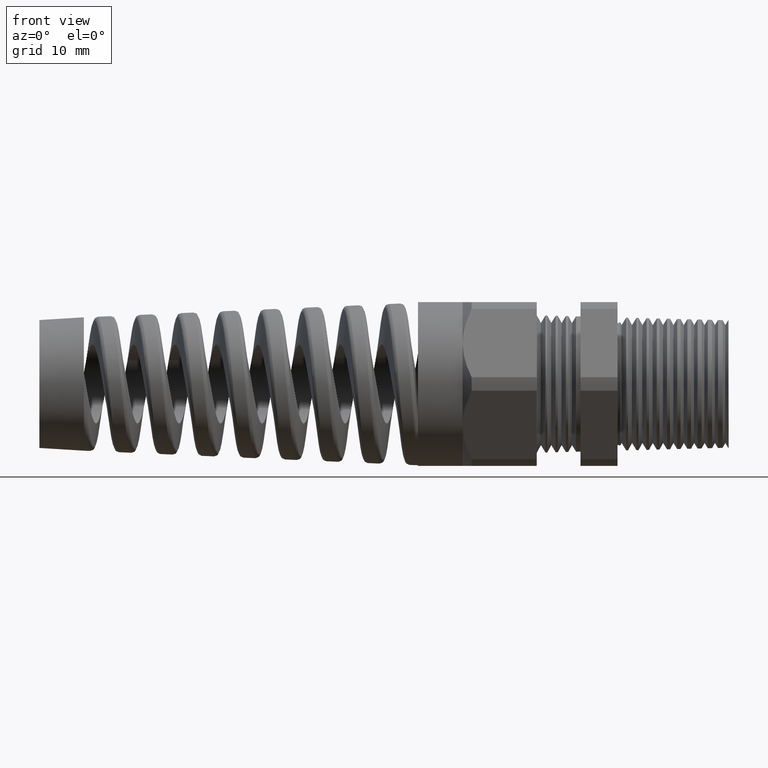
[diagram: clean part render]
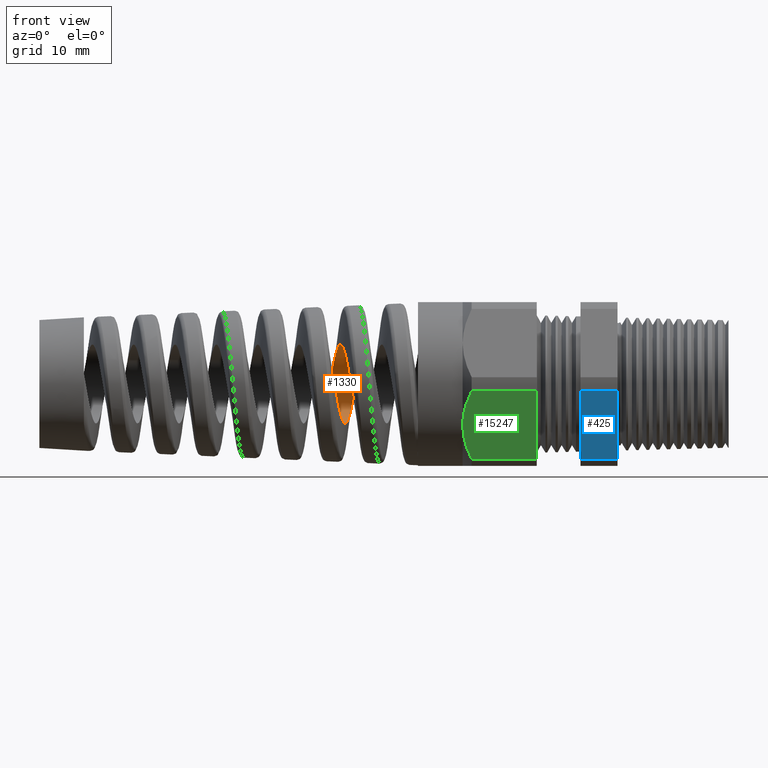
[diagram: same view with three faces highlighted in distinct colors, each labeled with its STEP entity id]
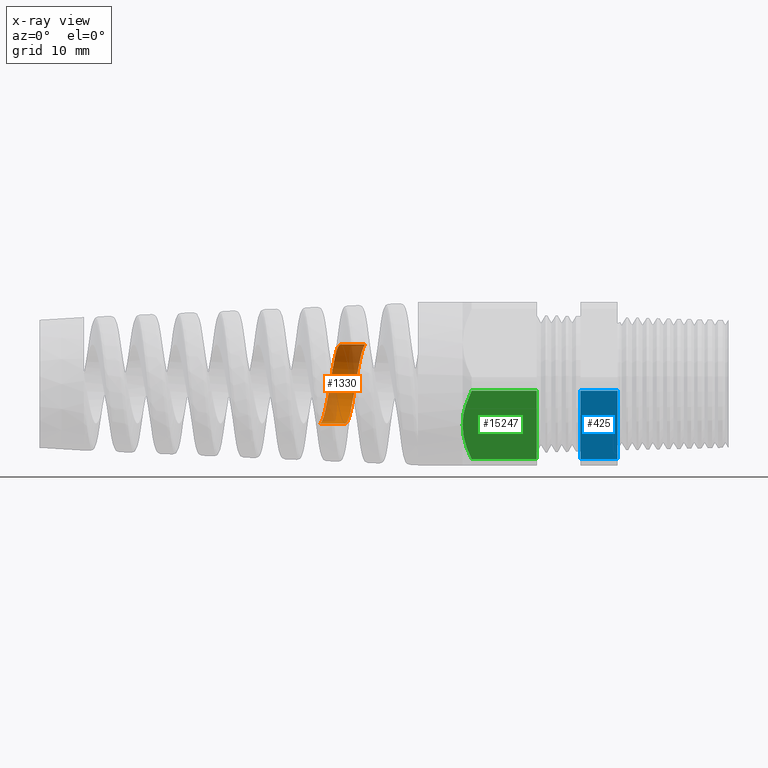
[diagram: x-ray of the same camera — body ghosted, the three highlighted faces saturated]
A machine part, front view with three faces highlighted in distinct colors.
The next image is the same camera in x-ray (body ghosted, the three faces saturated) — at least one of them is partly hidden behind the body in this view.
Their STEP definitions:

[orange] entity #1330 — the highlighted cylindrical surface (partial cylindrical patch) has radius 5.323 mm, axis along (1, 0, 0).
#1254 = VERTEX_POINT ( 'NONE', #12296 ) ;
#1256 = EDGE_CURVE ( 'NONE', #1276, #1254, #12176, .T. ) ;
#1262 = VERTEX_POINT ( 'NONE', #12270 ) ;
#1264 = VERTEX_POINT ( 'NONE', #12153 ) ;
#1276 = VERTEX_POINT ( 'NONE', #12507 ) ;
#1324 = EDGE_CURVE ( 'NONE', #1254, #1264, #12699, .T. ) ;
#1330 = ADVANCED_FACE ( 'NONE', ( #12790 ), #12969, .F. ) ;
#1331 = EDGE_LOOP ( 'NONE', ( #1332, #1333, #1335, #1336 ) ) ;
#1332 = ORIENTED_EDGE ( 'NONE', *, *, #1351, .F. ) ;
#1333 = ORIENTED_EDGE ( 'NONE', *, *, #1334, .T. ) ;
#1334 = EDGE_CURVE ( 'NONE', #1262, #1276, #12930, .T. ) ;
#1335 = ORIENTED_EDGE ( 'NONE', *, *, #1256, .T. ) ;
#1336 = ORIENTED_EDGE ( 'NONE', *, *, #1324, .T. ) ;
#1351 = EDGE_CURVE ( 'NONE', #1262, #1264, #12964, .T. ) ;
#12134 = CARTESIAN_POINT ( 'NONE',  ( -1.746575497261666700, 0.05444906251263706400, -0.2028371039648023400 ) ) ;
#12136 = CARTESIAN_POINT ( 'NONE',  ( -1.744300525730997100, 0.06751402036349636600, -0.1988687656055185500 ) ) ;
#12153 = CARTESIAN_POINT ( 'NONE',  ( -1.645530262480459300, -4.159676092884075900E-013, 0.2095688967857589100 ) ) ;
#12173 = DIRECTION ( 'NONE',  ( 1.000000000000000000, 0.0000000000000000000, 0.0000000000000000000 ) ) ;
#12174 = VECTOR ( 'NONE', #12173, 39.37007874015748100 ) ;
#12175 = CARTESIAN_POINT ( 'NONE',  ( 0.0000000000000000000, 0.0000000000000000000, -0.2095688967857589100 ) ) ;
#12176 = LINE ( 'NONE', #12175, #12174 ) ;
#12270 = CARTESIAN_POINT ( 'NONE',  ( -1.781526348335526600, -9.763203213747678800E-013, 0.2095688967857588500 ) ) ;
#12296 = CARTESIAN_POINT ( 'NONE',  ( -1.755782224503438200, -9.469694959287762100E-015, -0.2095688967857589100 ) ) ;
#12507 = CARTESIAN_POINT ( 'NONE',  ( -1.891273461046598700, 1.193643631347311500E-012, -0.2095688967857588500 ) ) ;
#12693 = CARTESIAN_POINT ( 'NONE',  ( -1.750022955404393800, 0.03425413527390328700, -0.2068644335790240900 ) ) ;
#12694 = CARTESIAN_POINT ( 'NONE',  ( -1.751184398491646900, 0.02738387321828985800, -0.2078862482763322300 ) ) ;
#12695 = CARTESIAN_POINT ( 'NONE',  ( -1.753491568717884300, 0.01367388344779317400, -0.2092357370199947100 ) ) ;
#12696 = CARTESIAN_POINT ( 'NONE',  ( -1.754638006638560100, 0.006830754863076883900, -0.2095688967857592100 ) ) ;
#12697 = CARTESIAN_POINT ( 'NONE',  ( -1.755782224503438200, -9.469694959287762100E-015, -0.2095688967857589100 ) ) ;
#12699 = B_SPLINE_CURVE_WITH_KNOTS ( 'NONE', 3,
 ( #12697, #12696, #12695, #12694, #12693, #12134, #12136, #12820, #12721, #12833, #12834, #12749, #12835, #12855, #12854, #12726, #12725, #12920, #12919, #12724, #12723, #12722, #12731, #12730, #12729, #12728, #12727, #12756, #12755, #12754, #12753, #12752, #12751, #12750, #12832, #12831, #12830, #12829 ),
 .UNSPECIFIED., .F., .F.,
 ( 4, 2, 2, 2, 2, 2, 2, 2, 2, 2, 2, 2, 2, 2, 2, 2, 2, 2, 4 ),
 ( 0.2124503794155099800, 0.2129777579731760900, 0.2135051365308421900, 0.2145598936461743900, 0.2156146507615066300, 0.2166694078768388300, 0.2171967864345049300, 0.2177241649921710400, 0.2187789221075032400, 0.2198336792228354500, 0.2208884363381676500, 0.2219431934534998600, 0.2229979505688320700, 0.2240527076841642700, 0.2251074647994964800, 0.2261622219148286800, 0.2272169790301608900, 0.2282717361454930900, 0.2293264932608253000 ),
 .UNSPECIFIED. ) ;
#12721 = CARTESIAN_POINT ( 'NONE',  ( -1.737383098091930000, 0.1051410334991804000, -0.1818005547064514300 ) ) ;
#12722 = CARTESIAN_POINT ( 'NONE',  ( -1.698339673693155700, 0.2095612349495736500, 0.01383629672076523700 ) ) ;
#12723 = CARTESIAN_POINT ( 'NONE',  ( -1.702934691205070500, 0.2095764938154713600, -0.01360321802181865800 ) ) ;
#12724 = CARTESIAN_POINT ( 'NONE',  ( -1.705256704005324100, 0.2082090057921019400, -0.02747480528906551900 ) ) ;
#12725 = CARTESIAN_POINT ( 'NONE',  ( -1.716736988460722000, 0.1883683682871228300, -0.09288211031904705700 ) ) ;
#12726 = CARTESIAN_POINT ( 'NONE',  ( -1.719033334957258000, 0.1818606483124988700, -0.1050343287266973500 ) ) ;
#12727 = CARTESIAN_POINT ( 'NONE',  ( -1.682290523494904800, 0.1819054238112201800, 0.1049752707684529800 ) ) ;
#12728 = CARTESIAN_POINT ( 'NONE',  ( -1.684569553552742300, 0.1883410568359895600, 0.09291719281961885500 ) ) ;
#12729 = CARTESIAN_POINT ( 'NONE',  ( -1.689147123227995300, 0.1988148089669389300, 0.06766557579017003200 ) ) ;
#12730 = CARTESIAN_POINT ( 'NONE',  ( -1.691470528289588800, 0.2028703848994551600, 0.05432075301512849500 ) ) ;
#12731 = CARTESIAN_POINT ( 'NONE',  ( -1.696062779094625200, 0.2082188267419427300, 0.02742366619532337500 ) ) ;
#12749 = CARTESIAN_POINT ( 'NONE',  ( -1.727065922519408700, 0.1530581960897300600, -0.1433171186990354600 ) ) ;
#12750 = CARTESIAN_POINT ( 'NONE',  ( -1.657020765778545200, 0.06755493690899523600, 0.1988524366372546000 ) ) ;
#12751 = CARTESIAN_POINT ( 'NONE',  ( -1.661597748390768900, 0.09281255216897796300, 0.1883926517070993500 ) ) ;
#12752 = CARTESIAN_POINT ( 'NONE',  ( -1.663874474454407200, 0.1048744893160691700, 0.1819635319612454300 ) ) ;
#12753 = CARTESIAN_POINT ( 'NONE',  ( -1.668495391114378300, 0.1278196919222992500, 0.1666478677631548500 ) ) ;
#12754 = CARTESIAN_POINT ( 'NONE',  ( -1.670798026682186500, 0.1384903099025273100, 0.1578794877336493500 ) ) ;
#12755 = CARTESIAN_POINT ( 'NONE',  ( -1.675369619909822900, 0.1578024668742723000, 0.1385780647589358000 ) ) ;
#12756 = CARTESIAN_POINT ( 'NONE',  ( -1.677670087057628400, 0.1665768218702127500, 0.1279122867455236600 ) ) ;
#12790 = FACE_OUTER_BOUND ( 'NONE', #1331, .T. ) ;
#12818 = CARTESIAN_POINT ( 'NONE',  ( -1.891273461046598700, 1.193643631347311500E-012, -0.2095688967857588500 ) ) ;
#12819 = CARTESIAN_POINT ( 'NONE',  ( -1.888993878671845200, 0.01367702947572828300, -0.2095688967856810000 ) ) ;
#12820 = CARTESIAN_POINT ( 'NONE',  ( -1.739709601462629900, 0.09283740325459019500, -0.1883829754411206200 ) ) ;
#12829 = CARTESIAN_POINT ( 'NONE',  ( -1.645530262480459300, -4.159676092884075900E-013, 0.2095688967857589100 ) ) ;
#12830 = CARTESIAN_POINT ( 'NONE',  ( -1.647827202617461400, 0.01371995186813719700, 0.2095688967857860500 ) ) ;
#12831 = CARTESIAN_POINT ( 'NONE',  ( -1.650101894014687000, 0.02730842958841207800, 0.2082339571602138700 ) ) ;
#12832 = CARTESIAN_POINT ( 'NONE',  ( -1.654695646200556900, 0.05420804593740716200, 0.2029005150235824200 ) ) ;
#12833 = CARTESIAN_POINT ( 'NONE',  ( -1.732804833207297400, 0.1278720607108399800, -0.1665977632095115600 ) ) ;
#12834 = CARTESIAN_POINT ( 'NONE',  ( -1.730528378862969700, 0.1384400431651635300, -0.1579348554251728800 ) ) ;
#12835 = CARTESIAN_POINT ( 'NONE',  ( -1.725904271645808800, 0.1577181453561663800, -0.1381708908349837700 ) ) ;
#12854 = CARTESIAN_POINT ( 'NONE',  ( -1.722461951135749500, 0.1704876651940945300, -0.1220642220128156500 ) ) ;
#12855 = CARTESIAN_POINT ( 'NONE',  ( -1.723605382106830200, 0.1664189027377970300, -0.1275576624913983500 ) ) ;
#12887 = CARTESIAN_POINT ( 'NONE',  ( -1.886679357723837200, 0.02756741422999585400, -0.2081988884560221900 ) ) ;
#12888 = CARTESIAN_POINT ( 'NONE',  ( -1.882112434805772900, 0.05443270335471433300, -0.2028393953036467000 ) ) ;
#12889 = CARTESIAN_POINT ( 'NONE',  ( -1.879846041058534900, 0.06749918686196575100, -0.1988759976966291100 ) ) ;
#12890 = CARTESIAN_POINT ( 'NONE',  ( -1.876411654168027400, 0.08653527784974912600, -0.1909919847380534600 ) ) ;
#12891 = CARTESIAN_POINT ( 'NONE',  ( -1.875254840501709500, 0.09281746723439066000, -0.1880197159530952200 ) ) ;
#12892 = CARTESIAN_POINT ( 'NONE',  ( -1.872960805646126400, 0.1049543249723794600, -0.1815243385347594100 ) ) ;
#12893 = CARTESIAN_POINT ( 'NONE',  ( -1.871820977463255900, 0.1108250161746883900, -0.1779988109187669000 ) ) ;
#12894 = CARTESIAN_POINT ( 'NONE',  ( -1.868405974433819500, 0.1278552371817553200, -0.1666094667768200900 ) ) ;
#12895 = CARTESIAN_POINT ( 'NONE',  ( -1.866135156976218100, 0.1384383996269417900, -0.1579405745581450900 ) ) ;
#12896 = CARTESIAN_POINT ( 'NONE',  ( -1.861524015658970500, 0.1579944055237458600, -0.1383769612552031800 ) ) ;
#12897 = CARTESIAN_POINT ( 'NONE',  ( -1.859247799063939800, 0.1666876095605509800, -0.1277528173073200200 ) ) ;
#12898 = CARTESIAN_POINT ( 'NONE',  ( -1.855834314445699200, 0.1780627984865138000, -0.1107220260286689900 ) ) ;
#12899 = CARTESIAN_POINT ( 'NONE',  ( -1.854695218617993000, 0.1815809658113198300, -0.1048555068580484400 ) ) ;
#12900 = CARTESIAN_POINT ( 'NONE',  ( -1.852403999263667800, 0.1880587240849655500, -0.09273748303121423500 ) ) ;
#12901 = CARTESIAN_POINT ( 'NONE',  ( -1.851246290987832000, 0.1910296186176624100, -0.08645312172339418600 ) ) ;
#12902 = CARTESIAN_POINT ( 'NONE',  ( -1.847805361816713800, 0.1989180908016855400, -0.06737993344854693900 ) ) ;
#12903 = CARTESIAN_POINT ( 'NONE',  ( -1.845540376741785900, 0.2028723747767411400, -0.05430590772215490600 ) ) ;
#12904 = CARTESIAN_POINT ( 'NONE',  ( -1.840979719677842400, 0.2082112013591863300, -0.02746684710056964900 ) ) ;
#12905 = CARTESIAN_POINT ( 'NONE',  ( -1.838662594602048500, 0.2095765015910175100, -0.01357374124329432200 ) ) ;
#12906 = CARTESIAN_POINT ( 'NONE',  ( -1.834097483491273300, 0.2095612267619286800, 0.01380755983167150800 ) ) ;
#12907 = CARTESIAN_POINT ( 'NONE',  ( -1.831832770614336000, 0.2082244382708631800, 0.02739807958068154700 ) ) ;
#12908 = CARTESIAN_POINT ( 'NONE',  ( -1.828396575296827900, 0.2042023979335315900, 0.04762079816295720900 ) ) ;
#12909 = CARTESIAN_POINT ( 'NONE',  ( -1.827239295049808600, 0.2025116054764458700, 0.05436423831136209100 ) ) ;
#12910 = CARTESIAN_POINT ( 'NONE',  ( -1.824946038507943200, 0.1985116107738539900, 0.06752452256619179100 ) ) ;
#12911 = CARTESIAN_POINT ( 'NONE',  ( -1.823805977238827500, 0.1962004382394838000, 0.07396709788641787900 ) ) ;
#12912 = CARTESIAN_POINT ( 'NONE',  ( -1.820390598791220100, 0.1883541936413772000, 0.09288866657522790200 ) ) ;
#12913 = CARTESIAN_POINT ( 'NONE',  ( -1.818120704622072400, 0.1819149983472653200, 0.1049654528856736300 ) ) ;
#12914 = CARTESIAN_POINT ( 'NONE',  ( -1.813506096835449300, 0.1665250415546316900, 0.1279852470342120500 ) ) ;
#12915 = CARTESIAN_POINT ( 'NONE',  ( -1.811234221320132000, 0.1578211450304798400, 0.1385571019951908100 ) ) ;
#12916 = CARTESIAN_POINT ( 'NONE',  ( -1.807818877109991200, 0.1433354155274544100, 0.1530382194537737200 ) ) ;
#12917 = CARTESIAN_POINT ( 'NONE',  ( -1.806679283192790500, 0.1382659900512070400, 0.1576353703706259200 ) ) ;
#12918 = CARTESIAN_POINT ( 'NONE',  ( -1.804387176691550500, 0.1276365530330184600, 0.1663589622670637600 ) ) ;
#12919 = CARTESIAN_POINT ( 'NONE',  ( -1.709832824890506800, 0.2028781637042624300, -0.05427988311146331900 ) ) ;
#12920 = CARTESIAN_POINT ( 'NONE',  ( -1.712112688973008700, 0.1989253469379521600, -0.06736790730079228500 ) ) ;
#12921 = CARTESIAN_POINT ( 'NONE',  ( -1.803229911806803100, 0.1220511659257608900, 0.1704989715295454600 ) ) ;
#12922 = CARTESIAN_POINT ( 'NONE',  ( -1.799792829787606700, 0.1048960138784889600, 0.1819478066872062000 ) ) ;
#12923 = CARTESIAN_POINT ( 'NONE',  ( -1.797527546137021500, 0.09284728204487054100, 0.1883769391138569700 ) ) ;
#12924 = CARTESIAN_POINT ( 'NONE',  ( -1.792962614443034400, 0.06755494888184368500, 0.1988537599709822000 ) ) ;
#12925 = CARTESIAN_POINT ( 'NONE',  ( -1.790646314334333200, 0.05419429184234123000, 0.2029023701158704800 ) ) ;
#12926 = CARTESIAN_POINT ( 'NONE',  ( -1.786085138581238200, 0.02734786767754980900, 0.2082270088159117700 ) ) ;
#12927 = CARTESIAN_POINT ( 'NONE',  ( -1.783820081362818400, 0.01375591982886459900, 0.2095688967858229400 ) ) ;
#12928 = CARTESIAN_POINT ( 'NONE',  ( -1.781526348335526600, -9.763203213747678800E-013, 0.2095688967857588500 ) ) ;
#12930 = B_SPLINE_CURVE_WITH_KNOTS ( 'NONE', 3,
 ( #12928, #12927, #12926, #12925, #12924, #12923, #12922, #12921, #12918, #12917, #12916, #12915, #12914, #12913, #12912, #12911, #12910, #12909, #12908, #12907, #12906, #12905, #12904, #12903, #12902, #12901, #12900, #12899, #12898, #12897, #12896, #12895, #12894, #12893, #12892, #12891, #12890, #12889, #12888, #12887, #12819, #12818 ),
 .UNSPECIFIED., .F., .F.,
 ( 4, 2, 2, 2, 2, 2, 2, 2, 2, 2, 2, 2, 2, 2, 2, 2, 2, 2, 2, 2, 4 ),
 ( 0.07556842978163189100, 0.07662301440690141900, 0.07767759903217094600, 0.07873218365744048800, 0.07925947597007525200, 0.07978676828271001600, 0.08084135290797953000, 0.08189593753324905800, 0.08242322984588382200, 0.08295052215851858600, 0.08400510678378811400, 0.08505969140905762800, 0.08611427603432715600, 0.08664156834696192000, 0.08716886065959668400, 0.08822344528486619800, 0.08927802991013572600, 0.08980532222277047600, 0.09033261453540524000, 0.09138719916067475400, 0.09244178378594428100 ),
 .UNSPECIFIED. ) ;
#12961 = DIRECTION ( 'NONE',  ( 1.000000000000000000, 0.0000000000000000000, 0.0000000000000000000 ) ) ;
#12962 = VECTOR ( 'NONE', #12961, 39.37007874015748100 ) ;
#12963 = CARTESIAN_POINT ( 'NONE',  ( 0.0000000000000000000, 2.566478786495217000E-017, 0.2095688967857589100 ) ) ;
#12964 = LINE ( 'NONE', #12963, #12962 ) ;
#12965 = DIRECTION ( 'NONE',  ( 0.0000000000000000000, 0.0000000000000000000, -1.000000000000000000 ) ) ;
#12966 = DIRECTION ( 'NONE',  ( 1.000000000000000000, 0.0000000000000000000, 0.0000000000000000000 ) ) ;
#12967 = CARTESIAN_POINT ( 'NONE',  ( 0.0000000000000000000, 0.0000000000000000000, 0.0000000000000000000 ) ) ;
#12968 = AXIS2_PLACEMENT_3D ( 'NONE', #12967, #12966, #12965 ) ;
#12969 = CYLINDRICAL_SURFACE ( 'NONE', #12968, 0.2095688967857589100 ) ;

[blue] entity #425 — the highlighted planar face has unit normal (0, -0.866, -0.5).
#425 = ADVANCED_FACE ( 'NONE', ( #5238 ), #5237, .T. ) ;
#426 = EDGE_LOOP ( 'NONE', ( #427, #428, #429, #531 ) ) ;
#427 = ORIENTED_EDGE ( 'NONE', *, *, #492, .T. ) ;
#428 = ORIENTED_EDGE ( 'NONE', *, *, #463, .F. ) ;
#429 = ORIENTED_EDGE ( 'NONE', *, *, #525, .F. ) ;
#445 = VERTEX_POINT ( 'NONE', #5227 ) ;
#463 = EDGE_CURVE ( 'NONE', #445, #464, #5140, .T. ) ;
#464 = VERTEX_POINT ( 'NONE', #5136 ) ;
#492 = EDGE_CURVE ( 'NONE', #15130, #464, #5096, .T. ) ;
#525 = EDGE_CURVE ( 'NONE', #15176, #445, #5247, .T. ) ;
#531 = ORIENTED_EDGE ( 'NONE', *, *, #15175, .F. ) ;
#5093 = DIRECTION ( 'NONE',  ( -1.000000000000000000, 0.0000000000000000000, 0.0000000000000000000 ) ) ;
#5094 = VECTOR ( 'NONE', #5093, 39.37007874015748100 ) ;
#5095 = CARTESIAN_POINT ( 'NONE',  ( 0.2800000000000000300, -0.4815054990391101600, -0.03600801154045414600 ) ) ;
#5096 = LINE ( 'NONE', #5095, #5094 ) ;
#5136 = CARTESIAN_POINT ( 'NONE',  ( -0.5068503937007874400, -0.4815054990391101600, -0.03600801154045414600 ) ) ;
#5137 = DIRECTION ( 'NONE',  ( 0.0000000000000000000, -0.4999999999999998900, 0.8660254037844386000 ) ) ;
#5138 = VECTOR ( 'NONE', #5137, 39.37007874015748100 ) ;
#5139 = CARTESIAN_POINT ( 'NONE',  ( -0.5068503937007874400, -0.1592210506462311000, -0.5942210506462308800 ) ) ;
#5140 = LINE ( 'NONE', #5139, #5138 ) ;
#5180 = DIRECTION ( 'NONE',  ( 0.0000000000000000000, 0.4999999999999998900, -0.8660254037844386000 ) ) ;
#5181 = DIRECTION ( 'NONE',  ( 0.0000000000000000000, -0.8660254037844387100, -0.4999999999999999400 ) ) ;
#5182 = AXIS2_PLACEMENT_3D ( 'NONE', #5242, #5181, #5180 ) ;
#5227 = CARTESIAN_POINT ( 'NONE',  ( -0.5068503937007874400, -0.2719366022533515900, -0.3989919884595459800 ) ) ;
#5237 = PLANE ( 'NONE',  #5182 ) ;
#5238 = FACE_OUTER_BOUND ( 'NONE', #426, .T. ) ;
#5242 = CARTESIAN_POINT ( 'NONE',  ( 0.2800000000000000300, -0.2719366022533516400, -0.3989919884595459200 ) ) ;
#5244 = DIRECTION ( 'NONE',  ( -1.000000000000000000, 0.0000000000000000000, 0.0000000000000000000 ) ) ;
#5245 = VECTOR ( 'NONE', #5244, 39.37007874015748100 ) ;
#5246 = CARTESIAN_POINT ( 'NONE',  ( 0.2800000000000000300, -0.2719366022533515900, -0.3989919884595459800 ) ) ;
#5247 = LINE ( 'NONE', #5246, #5245 ) ;
#13762 = CARTESIAN_POINT ( 'NONE',  ( -0.3100000000000000000, -0.4815054990391101600, -0.03600801154045414600 ) ) ;
#13804 = LINE ( 'NONE', #13927, #13926 ) ;
#13924 = CARTESIAN_POINT ( 'NONE',  ( -0.3100000000000000000, -0.2719366022533515900, -0.3989919884595459800 ) ) ;
#13925 = DIRECTION ( 'NONE',  ( 0.0000000000000000000, 0.4999999999999998900, -0.8660254037844386000 ) ) ;
#13926 = VECTOR ( 'NONE', #13925, 39.37007874015748100 ) ;
#13927 = CARTESIAN_POINT ( 'NONE',  ( -0.3100000000000000000, -0.1592210506462311000, -0.5942210506462308800 ) ) ;
#15130 = VERTEX_POINT ( 'NONE', #13762 ) ;
#15175 = EDGE_CURVE ( 'NONE', #15130, #15176, #13804, .T. ) ;
#15176 = VERTEX_POINT ( 'NONE', #13924 ) ;

[green] entity #15247 — the highlighted planar face has unit normal (0, -0.866, -0.5).
#13867 = CARTESIAN_POINT ( 'NONE',  ( -1.084669685039370400, -0.2719366022533515900, -0.3989919884595459800 ) ) ;
#13868 = CARTESIAN_POINT ( 'NONE',  ( -0.7388188976377955100, -0.2719366022533515900, -0.3989919884595459800 ) ) ;
#13869 = DIRECTION ( 'NONE',  ( -1.000000000000000000, 0.0000000000000000000, 0.0000000000000000000 ) ) ;
#13870 = VECTOR ( 'NONE', #13869, 39.37007874015748100 ) ;
#13871 = CARTESIAN_POINT ( 'NONE',  ( 0.2800000000000000300, -0.2719366022533515900, -0.3989919884595459800 ) ) ;
#13872 = LINE ( 'NONE', #13871, #13870 ) ;
#13992 = DIRECTION ( 'NONE',  ( 0.0000000000000000000, 0.4999999999999998900, -0.8660254037844386000 ) ) ;
#14000 = CARTESIAN_POINT ( 'NONE',  ( -1.084669685039370400, -0.2719366022533515900, -0.3989919884595459800 ) ) ;
#14001 = CARTESIAN_POINT ( 'NONE',  ( -1.099157415158389600, -0.2886265800965802700, -0.3700840988578751900 ) ) ;
#14002 = CARTESIAN_POINT ( 'NONE',  ( -1.111286394514541500, -0.3058768505272216900, -0.3402057540277010400 ) ) ;
#14003 = CARTESIAN_POINT ( 'NONE',  ( -1.127942311785731900, -0.3408216966984755600, -0.2796795049964107500 ) ) ;
#14004 = CARTESIAN_POINT ( 'NONE',  ( -1.132519685039370400, -0.3585905100533524100, -0.2489030174755555700 ) ) ;
#14005 = CARTESIAN_POINT ( 'NONE',  ( -1.132519685039370400, -0.3767210506462309600, -0.2175000000000000800 ) ) ;
#14006 = VECTOR ( 'NONE', #13992, 39.37007874015748100 ) ;
#14007 = CARTESIAN_POINT ( 'NONE',  ( -0.7388188976377955100, -0.2854710506462310700, -0.3755496361906601200 ) ) ;
#14008 = LINE ( 'NONE', #14007, #14006 ) ;
#14052 = DIRECTION ( 'NONE',  ( 0.0000000000000000000, 0.4999999999999998900, -0.8660254037844386000 ) ) ;
#14053 = DIRECTION ( 'NONE',  ( 0.0000000000000000000, -0.8660254037844387100, -0.4999999999999999400 ) ) ;
#14054 = CARTESIAN_POINT ( 'NONE',  ( 0.2800000000000000300, -0.2719366022533516400, -0.3989919884595459200 ) ) ;
#14055 = AXIS2_PLACEMENT_3D ( 'NONE', #14054, #14053, #14052 ) ;
#14056 = PLANE ( 'NONE',  #14055 ) ;
#14057 = FACE_OUTER_BOUND ( 'NONE', #15248, .T. ) ;
#14131 = B_SPLINE_CURVE_WITH_KNOTS ( 'NONE', 3,
 ( #14005, #14004, #14003, #14002, #14001, #14000 ),
 .UNSPECIFIED., .F., .F.,
 ( 4, 2, 4 ),
 ( 0.005463532759325817600, 0.008193301819514673200, 0.01092307087970352700 ),
 .UNSPECIFIED. ) ;
#14178 = DIRECTION ( 'NONE',  ( -1.000000000000000000, 0.0000000000000000000, 0.0000000000000000000 ) ) ;
#14179 = VECTOR ( 'NONE', #14178, 39.37007874015748100 ) ;
#14180 = CARTESIAN_POINT ( 'NONE',  ( -1.084669685039370400, -0.4815054990391101600, -0.03600801154045414600 ) ) ;
#14181 = B_SPLINE_CURVE_WITH_KNOTS ( 'NONE', 3,
 ( #14180, #14191, #14190, #14189, #14188, #14187, #14186, #14248 ),
 .UNSPECIFIED., .F., .F.,
 ( 4, 2, 2, 4 ),
 ( 2.483252225681135000E-007, 0.002731890542274192800, 0.004097711650800005400, 0.005463532759325817600 ),
 .UNSPECIFIED. ) ;
#14183 = CARTESIAN_POINT ( 'NONE',  ( -1.132519685039370400, -0.3767210506462309600, -0.2175000000000000800 ) ) ;
#14184 = CARTESIAN_POINT ( 'NONE',  ( 0.2800000000000000300, -0.4815054990391101600, -0.03600801154045414600 ) ) ;
#14185 = LINE ( 'NONE', #14184, #14179 ) ;
#14186 = CARTESIAN_POINT ( 'NONE',  ( -1.132519685039370400, -0.3857925414957258400, -0.2017877169482786800 ) ) ;
#14187 = CARTESIAN_POINT ( 'NONE',  ( -1.131354988471799500, -0.3949608729582815300, -0.1859077010345000200 ) ) ;
#14188 = CARTESIAN_POINT ( 'NONE',  ( -1.126908158158723500, -0.4128791740769161000, -0.1548722931117066100 ) ) ;
#14189 = CARTESIAN_POINT ( 'NONE',  ( -1.123634860337035900, -0.4217074978350993700, -0.1395811878168658800 ) ) ;
#14190 = CARTESIAN_POINT ( 'NONE',  ( -1.111099787961890500, -0.4478541282806171600, -0.09429389543850165400 ) ) ;
#14191 = CARTESIAN_POINT ( 'NONE',  ( -1.099139491192393500, -0.4648361697441959500, -0.06488013680734147600 ) ) ;
#14206 = CARTESIAN_POINT ( 'NONE',  ( -1.084669685039370400, -0.4815054990391101600, -0.03600801154045414600 ) ) ;
#14207 = CARTESIAN_POINT ( 'NONE',  ( -0.7388188976377955100, -0.4815054990391101600, -0.03600801154045414600 ) ) ;
#14248 = CARTESIAN_POINT ( 'NONE',  ( -1.132519685039370400, -0.3767210506462309600, -0.2175000000000000800 ) ) ;
#15184 = EDGE_CURVE ( 'NONE', #15185, #15186, #13872, .T. ) ;
#15185 = VERTEX_POINT ( 'NONE', #13868 ) ;
#15186 = VERTEX_POINT ( 'NONE', #13867 ) ;
#15247 = ADVANCED_FACE ( 'NONE', ( #14057 ), #14056, .T. ) ;
#15248 = EDGE_LOOP ( 'NONE', ( #15249, #15287, #15290, #15265, #15266 ) ) ;
#15249 = ORIENTED_EDGE ( 'NONE', *, *, #15284, .T. ) ;
#15264 = EDGE_CURVE ( 'NONE', #15289, #15186, #14131, .T. ) ;
#15265 = ORIENTED_EDGE ( 'NONE', *, *, #15184, .F. ) ;
#15266 = ORIENTED_EDGE ( 'NONE', *, *, #15267, .F. ) ;
#15267 = EDGE_CURVE ( 'NONE', #15285, #15185, #14008, .T. ) ;
#15284 = EDGE_CURVE ( 'NONE', #15285, #15286, #14185, .T. ) ;
#15285 = VERTEX_POINT ( 'NONE', #14207 ) ;
#15286 = VERTEX_POINT ( 'NONE', #14206 ) ;
#15287 = ORIENTED_EDGE ( 'NONE', *, *, #15288, .T. ) ;
#15288 = EDGE_CURVE ( 'NONE', #15286, #15289, #14181, .T. ) ;
#15289 = VERTEX_POINT ( 'NONE', #14183 ) ;
#15290 = ORIENTED_EDGE ( 'NONE', *, *, #15264, .T. ) ;